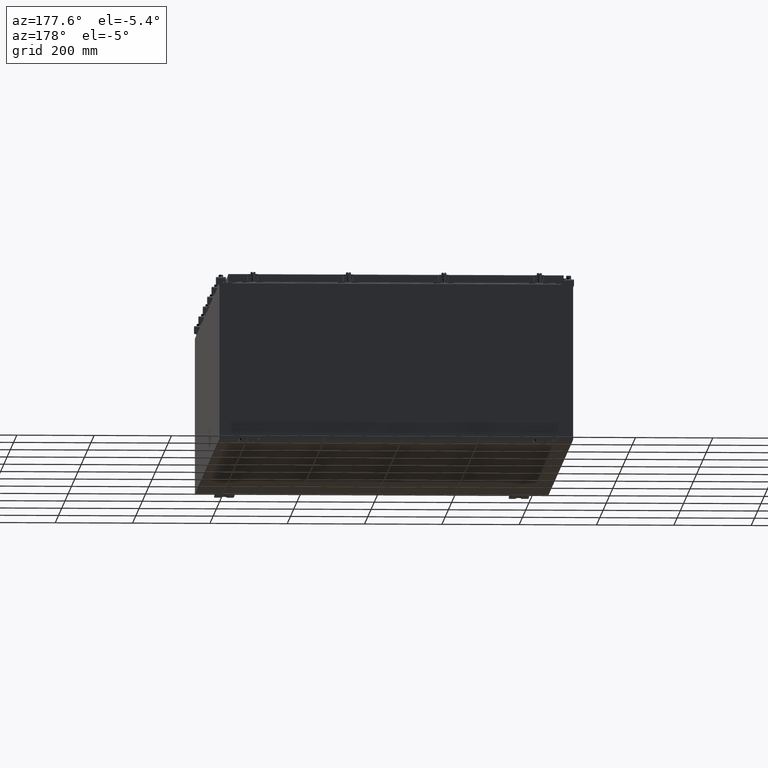
[diagram: clean part render]
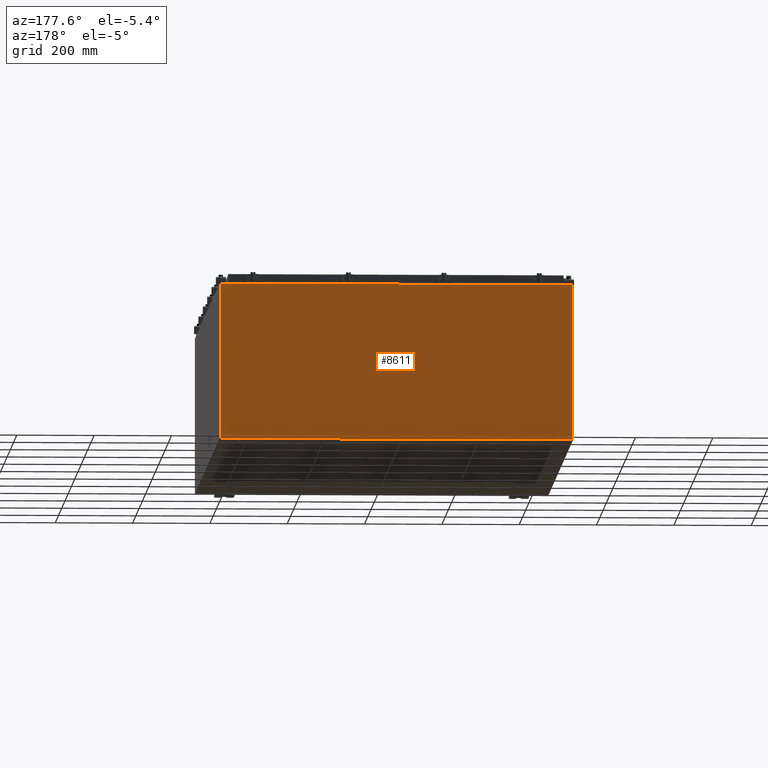
[diagram: same view with one face highlighted and labeled with its STEP entity id]
A machine part, auxiliary view. The second image highlights one B-rep face of the part: STEP entity #8611.
In plain terms, the highlighted planar face has unit normal (0, -1, 0).
Its self-contained STEP definition (entity closure, byte-faithful):
#139 = CARTESIAN_POINT ( 'NONE',  ( 16.67454999999931800, -0.0000000000000000000, -1.447541957108381700E-012 ) ) ;
#828 = VERTEX_POINT ( 'NONE', #1504 ) ;
#896 = CARTESIAN_POINT ( 'NONE',  ( -17.92530000000000000, 0.0000000000000000000, 7.925300000000001800 ) ) ;
#981 = CARTESIAN_POINT ( 'NONE',  ( 17.92530000000000000, 0.0000000000000000000, 7.925300000000000000 ) ) ;
#1032 = ORIENTED_EDGE ( 'NONE', *, *, #14958, .T. ) ;
#1294 = VERTEX_POINT ( 'NONE', #11479 ) ;
#1504 = CARTESIAN_POINT ( 'NONE',  ( 17.92530000000000000, 0.0000000000000000000, -7.925299999999997300 ) ) ;
#1673 = AXIS2_PLACEMENT_3D ( 'NONE', #14780, #1996, #16920 ) ;
#1678 = FACE_OUTER_BOUND ( 'NONE', #26528, .T. ) ;
#1799 = ORIENTED_EDGE ( 'NONE', *, *, #10615, .F. ) ;
#1816 = CARTESIAN_POINT ( 'NONE',  ( -17.92530000000000000, 0.0000000000000000000, 7.925300000000001800 ) ) ;
#1985 = ORIENTED_EDGE ( 'NONE', *, *, #5637, .T. ) ;
#1996 = DIRECTION ( 'NONE',  ( -0.0000000000000000000, 1.000000000000000000, -0.0000000000000000000 ) ) ;
#2238 = ORIENTED_EDGE ( 'NONE', *, *, #9789, .F. ) ;
#2286 = VERTEX_POINT ( 'NONE', #24971 ) ;
#2810 = CARTESIAN_POINT ( 'NONE',  ( -16.67455000000000000, 0.0000000000000000000, 7.874950000000001900 ) ) ;
#3291 = DIRECTION ( 'NONE',  ( 1.000000000000000000, 0.0000000000000000000, -6.096072018129154100E-017 ) ) ;
#3529 = AXIS2_PLACEMENT_3D ( 'NONE', #8012, #22884, #10190 ) ;
#3777 = CARTESIAN_POINT ( 'NONE',  ( 16.67455000000000700, 0.0000000000000000000, 7.925300000000000000 ) ) ;
#3997 = DIRECTION ( 'NONE',  ( 0.0000000000000000000, 0.0000000000000000000, 1.000000000000000000 ) ) ;
#4162 = VERTEX_POINT ( 'NONE', #2810 ) ;
#5371 = VECTOR ( 'NONE', #15895, 39.37007874015748100 ) ;
#5508 = VERTEX_POINT ( 'NONE', #13480 ) ;
#5566 = CARTESIAN_POINT ( 'NONE',  ( -16.67455000000000000, -0.0000000000000000000, 0.0000000000000000000 ) ) ;
#5637 = EDGE_CURVE ( 'NONE', #11176, #1294, #7236, .T. ) ;
#5672 = VECTOR ( 'NONE', #3997, 39.37007874015748100 ) ;
#5767 = PLANE ( 'NONE',  #3529 ) ;
#5776 = VECTOR ( 'NONE', #15049, 39.37007874015748100 ) ;
#6035 = LINE ( 'NONE', #981, #5371 ) ;
#6153 = ORIENTED_EDGE ( 'NONE', *, *, #21631, .T. ) ;
#6317 = CARTESIAN_POINT ( 'NONE',  ( 16.65587500000000200, 0.0000000000000000000, 7.874950000000001900 ) ) ;
#6742 = LINE ( 'NONE', #896, #17374 ) ;
#6752 = ORIENTED_EDGE ( 'NONE', *, *, #10820, .F. ) ;
#7236 = LINE ( 'NONE', #26658, #17872 ) ;
#7330 = CIRCLE ( 'NONE', #1673, 0.01867499999999949400 ) ;
#7331 = VECTOR ( 'NONE', #14603, 39.37007874015748100 ) ;
#7711 = DIRECTION ( 'NONE',  ( 0.0000000000000000000, 0.0000000000000000000, 1.000000000000000000 ) ) ;
#7904 = CARTESIAN_POINT ( 'NONE',  ( 17.92530000000000000, 0.0000000000000000000, 7.925300000000000000 ) ) ;
#8012 = CARTESIAN_POINT ( 'NONE',  ( 0.0000000000000000000, 0.0000000000000000000, 0.0000000000000000000 ) ) ;
#8133 = VECTOR ( 'NONE', #13521, 39.37007874015748100 ) ;
#8323 = VECTOR ( 'NONE', #19978, 39.37007874015748100 ) ;
#8467 = DIRECTION ( 'NONE',  ( 0.0000000000000000000, 0.0000000000000000000, -1.000000000000000000 ) ) ;
#8611 = ADVANCED_FACE ( 'NONE', ( #1678 ), #5767, .F. ) ;
#8776 = VERTEX_POINT ( 'NONE', #15106 ) ;
#9015 = LINE ( 'NONE', #17837, #8323 ) ;
#9254 = CARTESIAN_POINT ( 'NONE',  ( -17.92530000000000000, 0.0000000000000000000, -7.925299999999997300 ) ) ;
#9299 = VERTEX_POINT ( 'NONE', #3777 ) ;
#9789 = EDGE_CURVE ( 'NONE', #22863, #14543, #16349, .T. ) ;
#9850 = CARTESIAN_POINT ( 'NONE',  ( -16.63720000000000400, -2.356218894535426900E-015, 7.912300000000008100 ) ) ;
#9990 = VECTOR ( 'NONE', #18374, 39.37007874015748100 ) ;
#10190 = DIRECTION ( 'NONE',  ( 0.0000000000000000000, -0.0000000000000000000, -1.000000000000000000 ) ) ;
#10615 = EDGE_CURVE ( 'NONE', #5508, #4162, #7330, .T. ) ;
#10820 = EDGE_CURVE ( 'NONE', #23773, #5508, #9015, .T. ) ;
#10826 = LINE ( 'NONE', #139, #5776 ) ;
#11025 = EDGE_CURVE ( 'NONE', #23773, #14543, #15644, .T. ) ;
#11176 = VERTEX_POINT ( 'NONE', #18845 ) ;
#11270 = ORIENTED_EDGE ( 'NONE', *, *, #21669, .T. ) ;
#11479 = CARTESIAN_POINT ( 'NONE',  ( -16.67455000000000000, 0.0000000000000000000, 7.925300000000001800 ) ) ;
#11827 = ORIENTED_EDGE ( 'NONE', *, *, #12395, .F. ) ;
#12395 = EDGE_CURVE ( 'NONE', #4162, #1294, #13922, .T. ) ;
#12535 = ORIENTED_EDGE ( 'NONE', *, *, #11025, .T. ) ;
#12936 = ORIENTED_EDGE ( 'NONE', *, *, #24297, .F. ) ;
#13017 = LINE ( 'NONE', #1816, #7331 ) ;
#13480 = CARTESIAN_POINT ( 'NONE',  ( -16.63720000000000400, -0.0000000000000000000, 7.874950000000001900 ) ) ;
#13521 = DIRECTION ( 'NONE',  ( -1.000000000000000000, -0.0000000000000000000, -0.0000000000000000000 ) ) ;
#13815 = LINE ( 'NONE', #9254, #8133 ) ;
#13922 = LINE ( 'NONE', #5566, #24536 ) ;
#14361 = AXIS2_PLACEMENT_3D ( 'NONE', #6317, #21218, #8467 ) ;
#14543 = VERTEX_POINT ( 'NONE', #21605 ) ;
#14603 = DIRECTION ( 'NONE',  ( -0.0000000000000000000, -0.0000000000000000000, 1.000000000000000000 ) ) ;
#14780 = CARTESIAN_POINT ( 'NONE',  ( -16.65587500000000200, 0.0000000000000000000, 7.874950000000001900 ) ) ;
#14958 = EDGE_CURVE ( 'NONE', #8776, #11176, #13017, .T. ) ;
#15049 = DIRECTION ( 'NONE',  ( -8.681145560800387200E-014, 0.0000000000000000000, -1.000000000000000000 ) ) ;
#15106 = CARTESIAN_POINT ( 'NONE',  ( -17.92530000000000000, 0.0000000000000000000, -7.925299999999997300 ) ) ;
#15644 = LINE ( 'NONE', #9850, #9990 ) ;
#15895 = DIRECTION ( 'NONE',  ( 0.0000000000000000000, 0.0000000000000000000, -1.000000000000000000 ) ) ;
#16349 = LINE ( 'NONE', #16755, #5672 ) ;
#16755 = CARTESIAN_POINT ( 'NONE',  ( 16.63720000000000400, 0.0000000000000000000, 0.0000000000000000000 ) ) ;
#16920 = DIRECTION ( 'NONE',  ( 0.0000000000000000000, 0.0000000000000000000, -1.000000000000000000 ) ) ;
#17374 = VECTOR ( 'NONE', #26390, 39.37007874015748100 ) ;
#17576 = CARTESIAN_POINT ( 'NONE',  ( -16.63720000000000400, -2.356218894535426900E-015, 7.912300000000008100 ) ) ;
#17837 = CARTESIAN_POINT ( 'NONE',  ( -16.63720000000000400, -0.0000000000000000000, 0.0000000000000000000 ) ) ;
#17872 = VECTOR ( 'NONE', #3291, 39.37007874015748100 ) ;
#18374 = DIRECTION ( 'NONE',  ( 1.000000000000000000, 0.0000000000000000000, 0.0000000000000000000 ) ) ;
#18845 = CARTESIAN_POINT ( 'NONE',  ( -17.92530000000000000, 0.0000000000000000000, 7.925300000000001800 ) ) ;
#18998 = EDGE_CURVE ( 'NONE', #828, #8776, #13815, .T. ) ;
#19663 = CIRCLE ( 'NONE', #14361, 0.01867499999999949400 ) ;
#19763 = ORIENTED_EDGE ( 'NONE', *, *, #26957, .F. ) ;
#19978 = DIRECTION ( 'NONE',  ( 0.0000000000000000000, 0.0000000000000000000, -1.000000000000000000 ) ) ;
#21121 = VERTEX_POINT ( 'NONE', #7904 ) ;
#21218 = DIRECTION ( 'NONE',  ( -0.0000000000000000000, 1.000000000000000000, -0.0000000000000000000 ) ) ;
#21605 = CARTESIAN_POINT ( 'NONE',  ( 16.63720000000000400, 0.0000000000000000000, 7.912300000000001900 ) ) ;
#21631 = EDGE_CURVE ( 'NONE', #9299, #21121, #6742, .T. ) ;
#21669 = EDGE_CURVE ( 'NONE', #21121, #828, #6035, .T. ) ;
#22863 = VERTEX_POINT ( 'NONE', #27190 ) ;
#22884 = DIRECTION ( 'NONE',  ( 0.0000000000000000000, -1.000000000000000000, 0.0000000000000000000 ) ) ;
#23773 = VERTEX_POINT ( 'NONE', #17576 ) ;
#24297 = EDGE_CURVE ( 'NONE', #9299, #2286, #10826, .T. ) ;
#24536 = VECTOR ( 'NONE', #7711, 39.37007874015748100 ) ;
#24971 = CARTESIAN_POINT ( 'NONE',  ( 16.67455000000000000, 0.0000000000000000000, 7.874950000000001900 ) ) ;
#26096 = ORIENTED_EDGE ( 'NONE', *, *, #18998, .T. ) ;
#26390 = DIRECTION ( 'NONE',  ( 1.000000000000000000, 0.0000000000000000000, -6.096072018129154100E-017 ) ) ;
#26528 = EDGE_LOOP ( 'NONE', ( #11827, #1799, #6752, #12535, #2238, #19763, #12936, #6153, #11270, #26096, #1032, #1985 ) ) ;
#26658 = CARTESIAN_POINT ( 'NONE',  ( -17.92530000000000000, 0.0000000000000000000, 7.925300000000001800 ) ) ;
#26957 = EDGE_CURVE ( 'NONE', #2286, #22863, #19663, .T. ) ;
#27190 = CARTESIAN_POINT ( 'NONE',  ( 16.63720000000000400, 0.0000000000000000000, 7.874950000000001900 ) ) ;